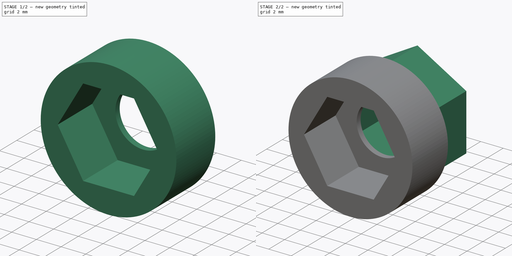
[diagram: build sequence overview — one tinted view per stage of 2, left to right]
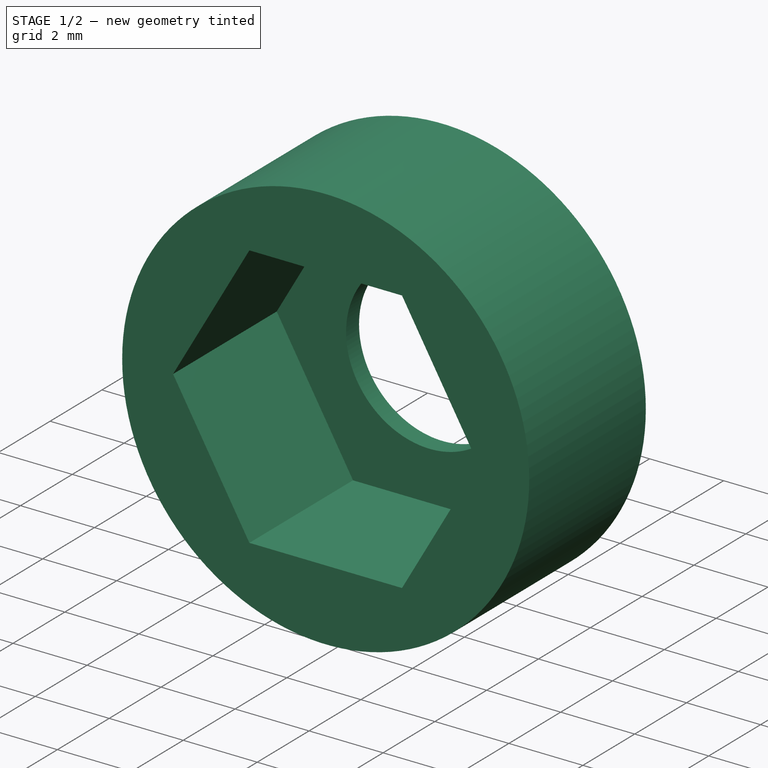
[diagram: stage 1 of 2 — iso view after this stage's code; geometry added in this stage tinted green]
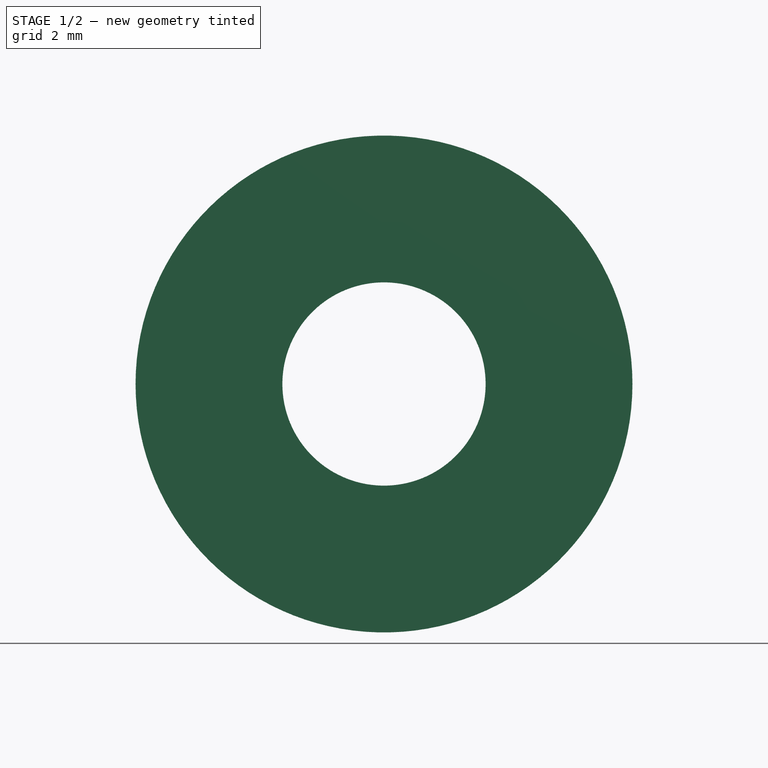
[diagram: stage 1 of 2 — front view after this stage's code; geometry added in this stage tinted green]
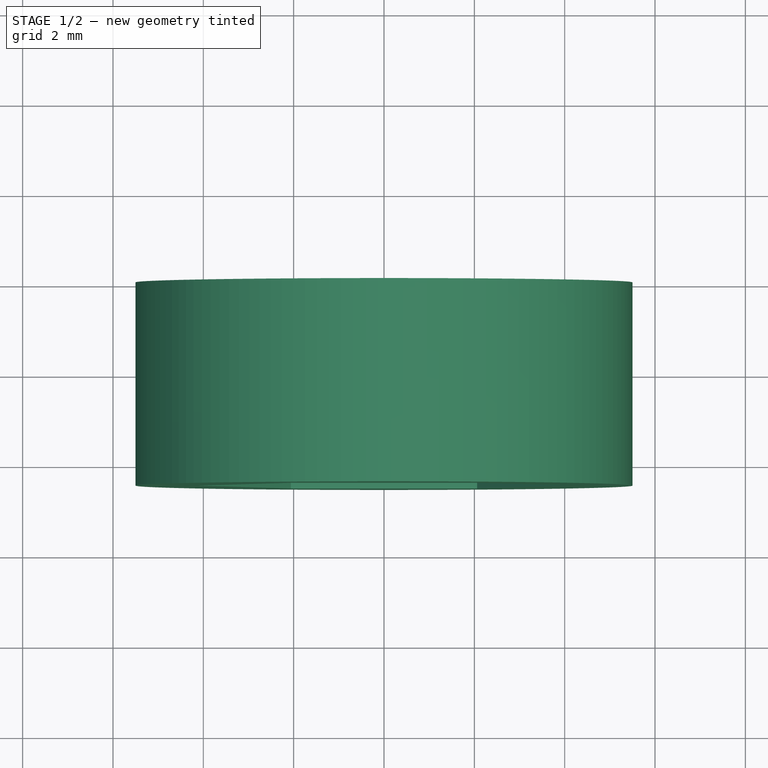
[diagram: stage 1 of 2 — top view after this stage's code; geometry added in this stage tinted green]
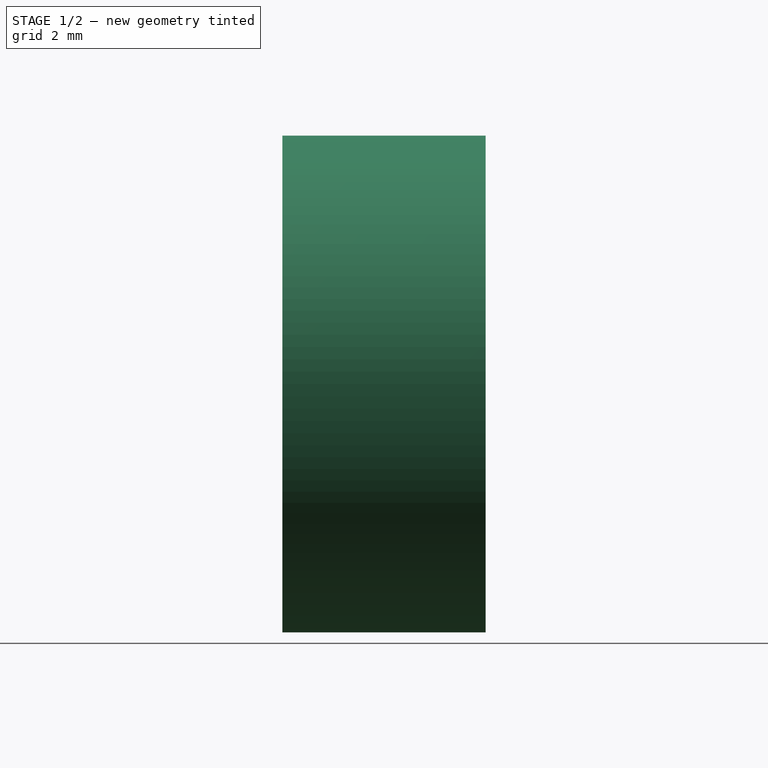
[diagram: stage 1 of 2 — right view after this stage's code; geometry added in this stage tinted green]
FCSTD DOCUMENT  (FreeCAD 1.0R38641 +678 (Git))
Label: sleeve-part2
License: All rights reserved
LicenseURL: https://en.wikipedia.org/wiki/All_rights_reserved
objects: Sketcher::SketchObject×3, PartDesign::Pad×3, PartDesign::Body×1
note: 16 computed .brp shape members not serialized (recipe doc carries the construction recipe); baked Part::Feature solids carry a one-line shape summary decoded from their .brp

FEATURE [Sketcher::SketchObject] Sketch165
  ArcFitTolerance = 0
  AttachmentSupport = -> [XZ_Plane021]
  FullyConstrained = true
  MakeInternals = false
  MapMode = 5
  Placement = pos=(0,0,0) rot=(1,0,0;1.5708rad)
  sketch-geometry (2):
    g0: Circle CenterX=0 CenterY=0 CenterZ=0 NormalX=0 NormalY=0 NormalZ=1 AngleXU=0 Radius=5.5
    g1: Circle CenterX=0 CenterY=0 CenterZ=0 NormalX=0 NormalY=0 NormalZ=1 AngleXU=0 Radius=2.25
  constraints (4):
    c: Diameter(g0) = 11
    c: Coincident(g0,g-1)
    c: Diameter(g1) = 4.5
    c: Coincident(g1,g0)
FEATURE [PartDesign::Pad] Pad071
  Direction = (0,-1,2e-16)
  Length = 0.5
  Length2 = 10
  Placement = pos=(0,0,0) rot=(1,0,0;1.5708rad)
  Profile = -> Sketch165
  ReferenceAxis = -> Sketch165 [N_Axis]
  Suppressed = false
  Type = 0
FEATURE [Sketcher::SketchObject] Sketch166
  ArcFitTolerance = 0
  AttachmentSupport = -> [Pad071]
  FullyConstrained = true
  MakeInternals = false
  MapMode = 5
  Placement = pos=(0,-0.5,0) rot=(1,0,0;1.5708rad)
  sketch-geometry (8):
    g0: LineSegment StartX=-2.0625 StartY=-3.57235 StartZ=0 EndX=2.0625 EndY=-3.57235 EndZ=0
    g1: LineSegment StartX=2.0625 StartY=-3.57235 StartZ=0 EndX=4.125 EndY=0 EndZ=0
    g2: LineSegment StartX=4.125 StartY=0 StartZ=0 EndX=2.0625 EndY=3.57235 EndZ=0
    g3: LineSegment StartX=2.0625 StartY=3.57235 StartZ=0 EndX=-2.0625 EndY=3.57235 EndZ=0
    g4: LineSegment StartX=-2.0625 StartY=3.57235 StartZ=0 EndX=-4.125 EndY=-9e-16 EndZ=0
    g5: LineSegment StartX=-4.125 StartY=-9e-16 StartZ=0 EndX=-2.0625 EndY=-3.57235 EndZ=0
    g6: Circle [constr] CenterX=0 CenterY=0 CenterZ=0 NormalX=0 NormalY=0 NormalZ=1 AngleXU=0 Radius=4.125
    g7: Circle CenterX=0 CenterY=0 CenterZ=0 NormalX=0 NormalY=0 NormalZ=1 AngleXU=0 Radius=5.5
  constraints (18):
    c: Coincident(g0,g1)
    c: Coincident(g1,g2)
    c: Coincident(g2,g3)
    c: Coincident(g3,g4)
    c: Coincident(g4,g5)
    c: Coincident(g5,g0)
    c: Equal(g0, g1-g5) x5
    c: PointOnObject(g0,g6)
    c: PointOnObject(g1,g6)
    c: PointOnObject(g2,g6)
    c: PointOnObject(g3,g6)
    c: PointOnObject(g4,g6)
    c: PointOnObject(g5,g6)
    c: Coincident(g6,g-1)
    c: PointOnObject(g1,g-1)
    c: Diameter(g6) = 8.25
    c: Coincident(g7,g6)
    c: Diameter(g7) = 11
FEATURE [PartDesign::Pad] Pad072
  BaseFeature = -> Pad071
  Direction = (0,-1,2e-16)
  Length = 4
  Length2 = 10
  Placement = pos=(0,0,0) rot=(1,0,0;1.5708rad)
  Profile = -> Sketch166
  ReferenceAxis = -> Sketch166 [N_Axis]
  Suppressed = false
  Type = 0
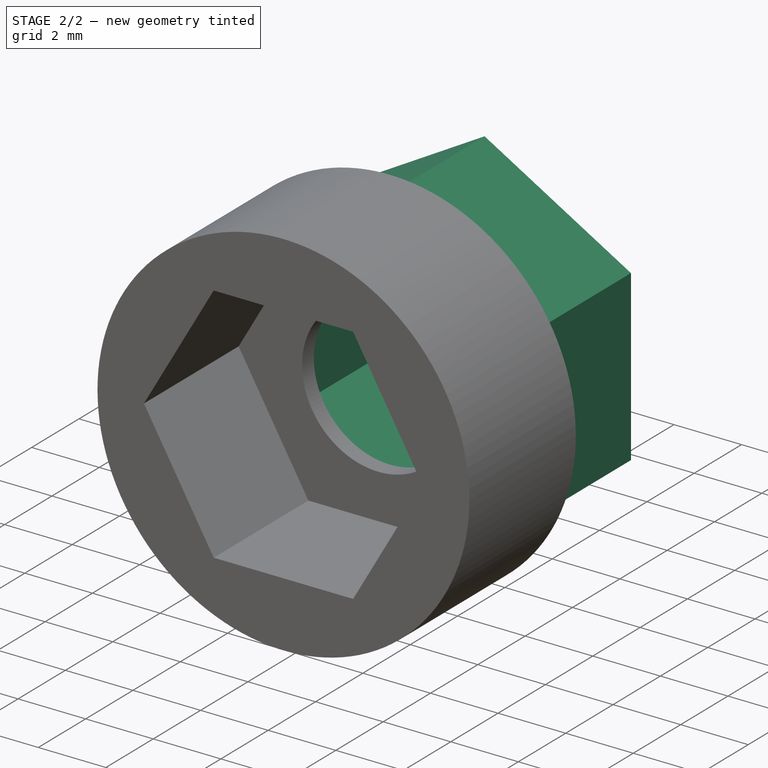
[diagram: stage 2 of 2 — iso view after this stage's code; geometry added in this stage tinted green]
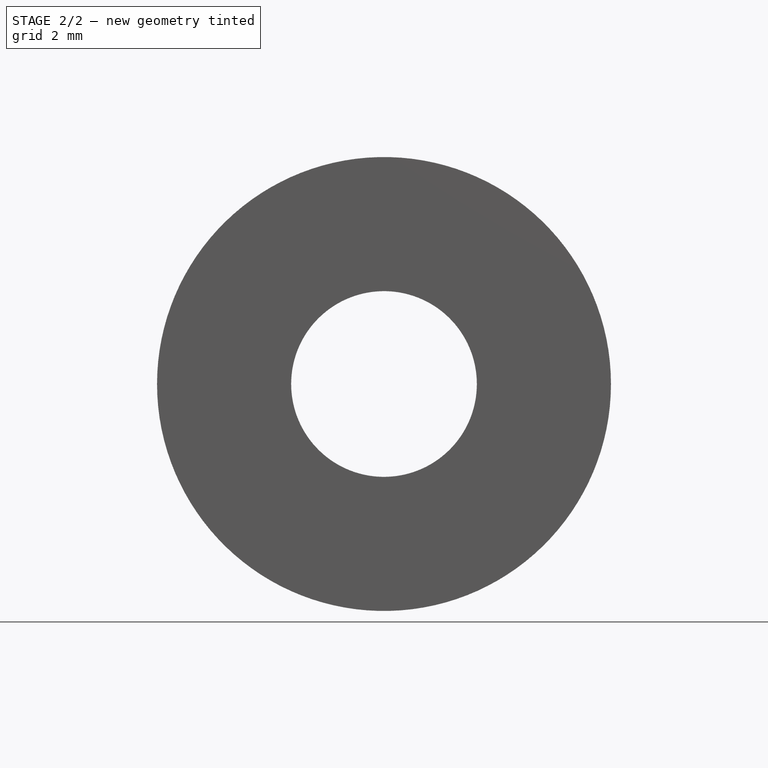
[diagram: stage 2 of 2 — front view after this stage's code; geometry added in this stage tinted green]
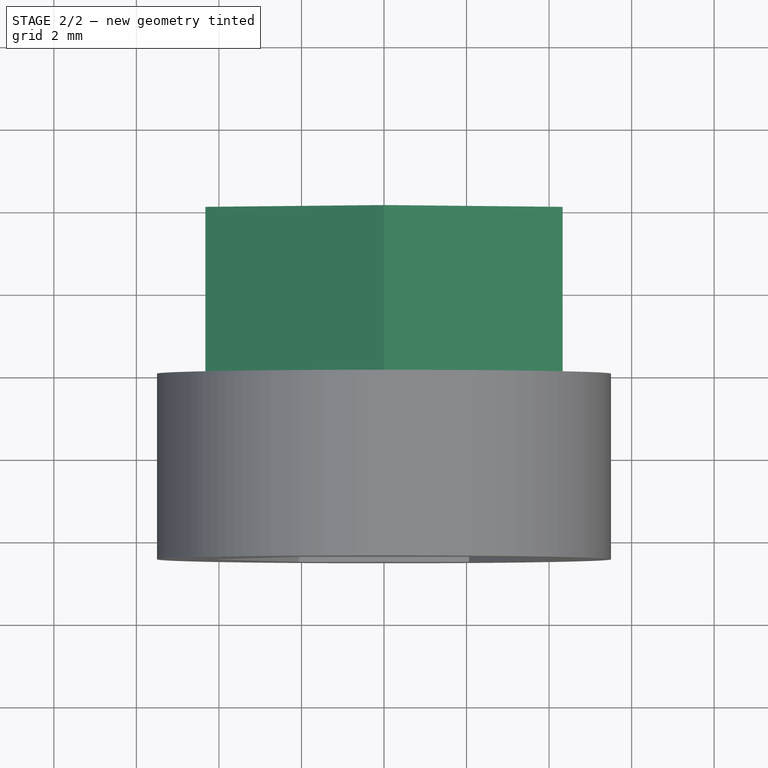
[diagram: stage 2 of 2 — top view after this stage's code; geometry added in this stage tinted green]
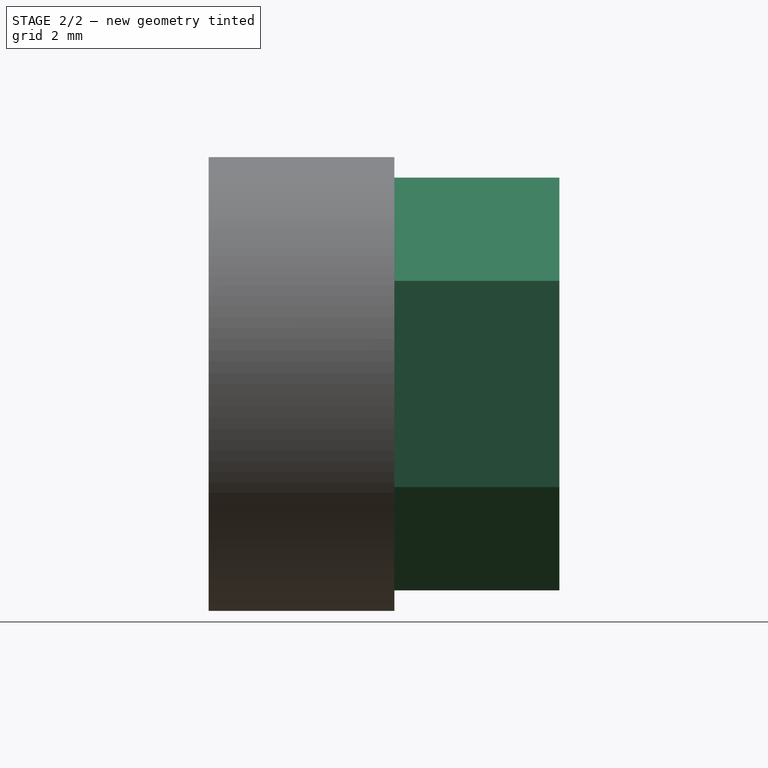
[diagram: stage 2 of 2 — right view after this stage's code; geometry added in this stage tinted green]
FEATURE [Sketcher::SketchObject] Sketch167
  ArcFitTolerance = 0
  AttachmentSupport = -> [Pad072]
  FullyConstrained = true
  MakeInternals = false
  MapMode = 5
  Placement = pos=(0,0,0) rot=(-1,0,0;1.5708rad)
  sketch-geometry (14):
    g0: LineSegment StartX=0 StartY=4 StartZ=0 EndX=-3.4641 EndY=2 EndZ=0
    g1: LineSegment StartX=-3.4641 StartY=2 StartZ=0 EndX=-3.4641 EndY=-2 EndZ=0
    g2: LineSegment StartX=-3.4641 StartY=-2 StartZ=0 EndX=0 EndY=-4 EndZ=0
    g3: LineSegment StartX=0 StartY=-4 StartZ=0 EndX=3.4641 EndY=-2 EndZ=0
    g4: LineSegment StartX=3.4641 StartY=-2 StartZ=0 EndX=3.4641 EndY=2 EndZ=0
    g5: LineSegment StartX=3.4641 StartY=2 StartZ=0 EndX=0 EndY=4 EndZ=0
    g6: Circle [constr] CenterX=0 CenterY=0 CenterZ=0 NormalX=0 NormalY=0 NormalZ=1 AngleXU=0 Radius=4
    g7: LineSegment StartX=0 StartY=5 StartZ=0 EndX=-4.33013 EndY=2.5 EndZ=0
    g8: LineSegment StartX=-4.33013 StartY=2.5 StartZ=0 EndX=-4.33013 EndY=-2.5 EndZ=0
    g9: LineSegment StartX=-4.33013 StartY=-2.5 StartZ=0 EndX=0 EndY=-5 EndZ=0
    g10: LineSegment StartX=0 StartY=-5 StartZ=0 EndX=4.33013 EndY=-2.5 EndZ=0
    g11: LineSegment StartX=4.33013 StartY=-2.5 StartZ=0 EndX=4.33013 EndY=2.5 EndZ=0
    g12: LineSegment StartX=4.33013 StartY=2.5 StartZ=0 EndX=0 EndY=5 EndZ=0
    g13: Circle [constr] CenterX=0 CenterY=0 CenterZ=0 NormalX=0 NormalY=0 NormalZ=1 AngleXU=0 Radius=5
  constraints (32):
    c: Coincident(g0,g1)
    c: Coincident(g1,g2)
    c: Coincident(g2,g3)
    c: Coincident(g3,g4)
    c: Coincident(g4,g5)
    c: Coincident(g5,g0)
    c: Equal(g0, g1-g5) x5
    c: PointOnObject(g0,g6)
    c: PointOnObject(g1,g6)
    c: PointOnObject(g2,g6)
    c: PointOnObject(g3,g6)
    c: PointOnObject(g4,g6)
    c: PointOnObject(g5,g6)
    c: Coincident(g6,g-1)
    c: Coincident(g7,g8)
    c: Coincident(g8,g9)
    c: Coincident(g9,g10)
    c: Coincident(g10,g11)
    c: Coincident(g11,g12)
    c: Coincident(g12,g7)
    c: Equal(g7, g8-g12) x5
    c: PointOnObject(g7,g13)
    c: PointOnObject(g8,g13)
    c: PointOnObject(g9,g13)
    c: PointOnObject(g10,g13)
    c: PointOnObject(g11,g13)
    c: PointOnObject(g12,g13)
    c: Coincident(g13,g6)
    c: Diameter(g13) = 10
    c: Diameter(g6) = 8
    c: PointOnObject(g7,g-2)
    c: PointOnObject(g0,g-2)
FEATURE [PartDesign::Pad] Pad073
  BaseFeature = -> Pad072
  Direction = (0,1,2e-16)
  Length = 4
  Length2 = 10
  Placement = pos=(0,0,0) rot=(1,0,0;1.5708rad)
  Profile = -> Sketch167
  ReferenceAxis = -> Sketch167 [N_Axis]
  Suppressed = false
  Type = 0
FEATURE [PartDesign::Body] Body021  label="sleeve-part2"
  AllowCompound = false
  Group = -> [Sketch165,Pad071,Sketch166,Pad072,Sketch167,Pad073]
  Origin = -> Origin021
  Placement = pos=(0,-103,24) rot=(0,0.707107,-0.707107;3.14159rad)
  Tip = -> Pad073
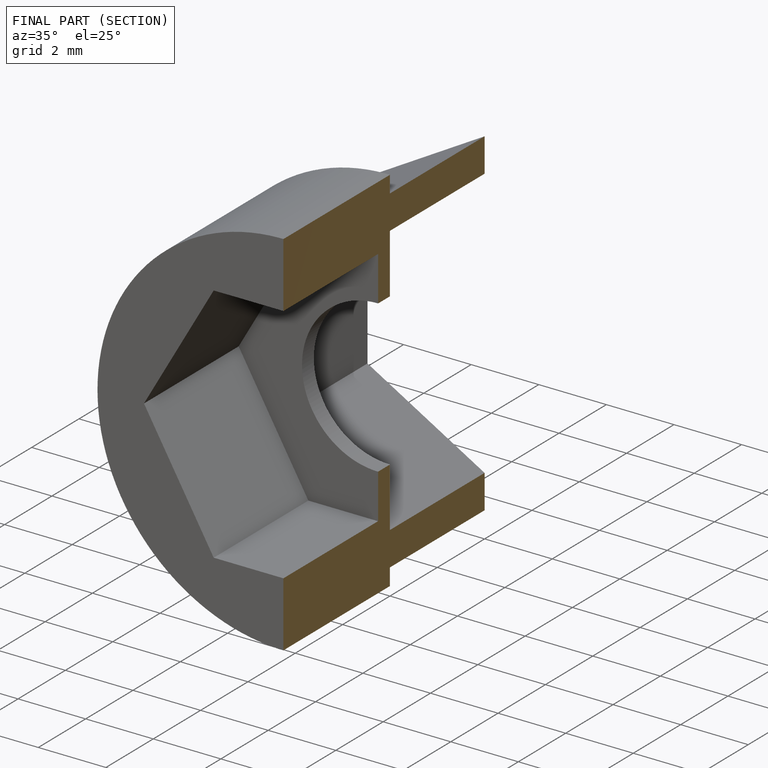
[diagram: finished part — half-section view (interior)]
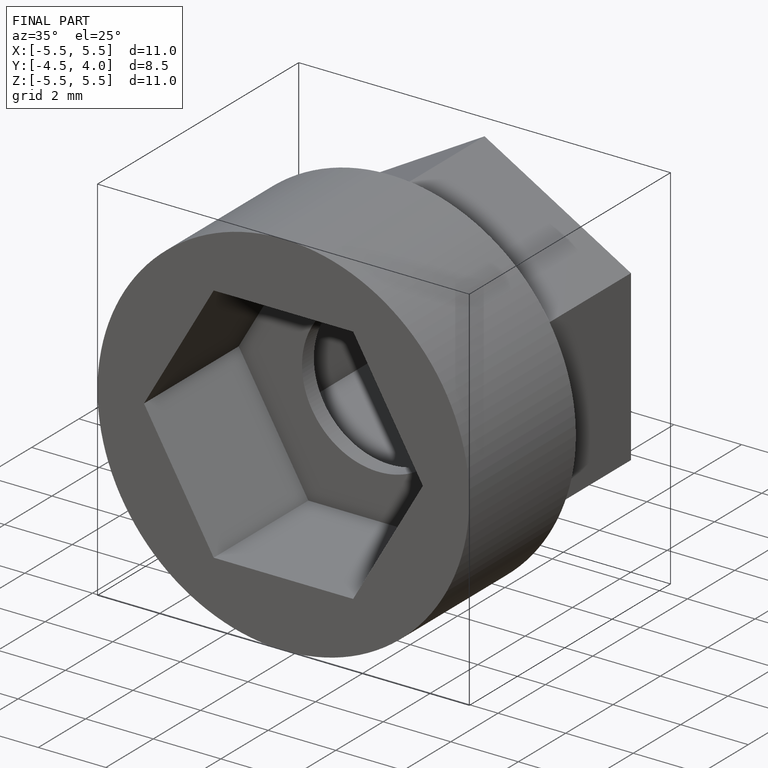
[diagram: finished part — iso view with bounding-box wireframe]
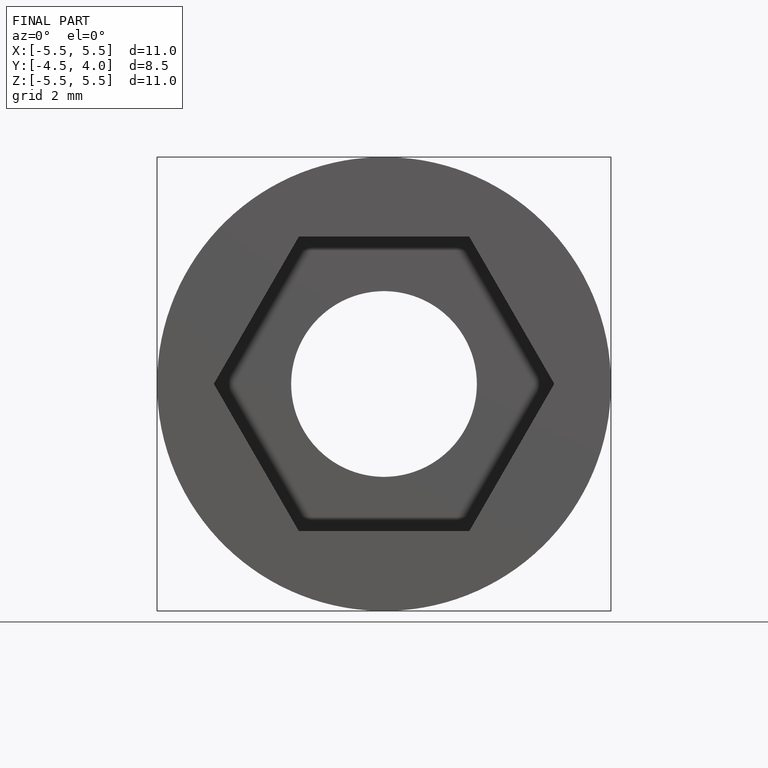
[diagram: finished part — front view with bounding-box wireframe]
